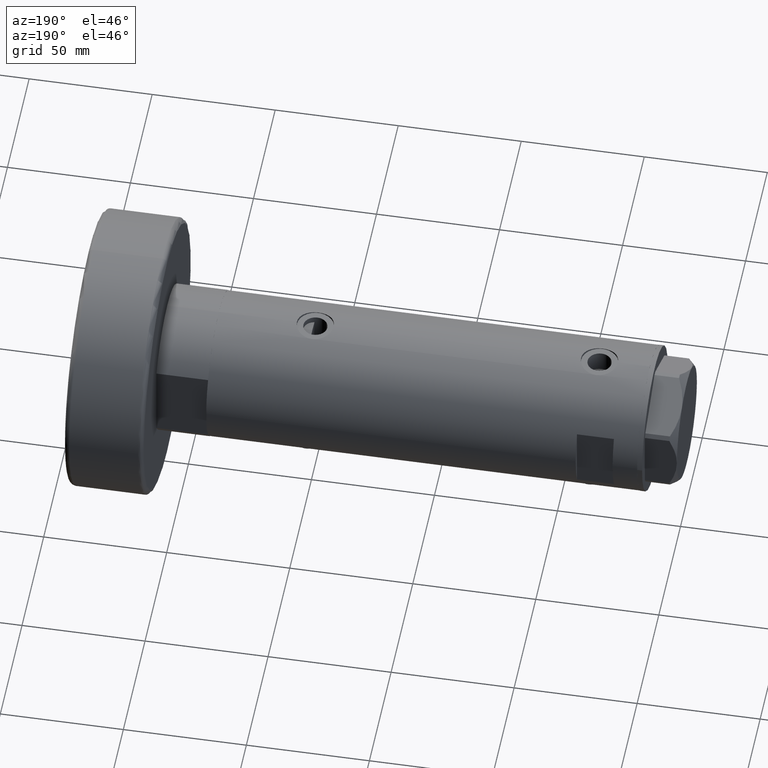
[diagram: clean part render]
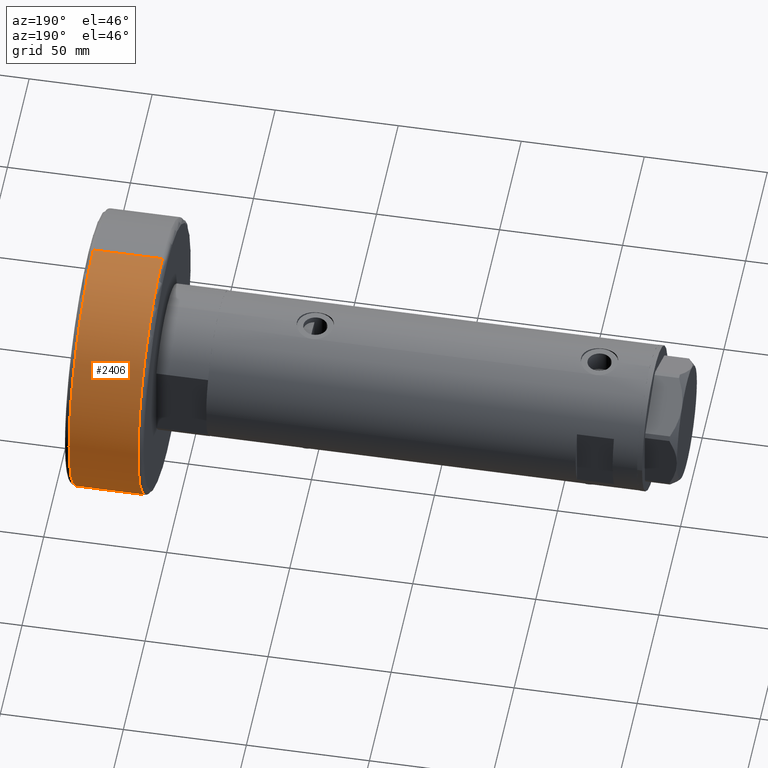
[diagram: same view with one face highlighted and labeled with its STEP entity id]
A machine part, auxiliary view. The second image highlights one B-rep face of the part: STEP entity #2406.
In plain terms, the highlighted cylindrical surface (partial cylindrical patch) has radius 56 mm, axis along (-1, -0, 0).
Its self-contained STEP definition (entity closure, byte-faithful):
#49 = AXIS2_PLACEMENT_3D ( 'NONE', #637, #3237, #2927 ) ;
#86 = DIRECTION ( 'NONE',  ( -0.000000000000000000, -0.000000000000000000, -1.000000000000000000 ) ) ;
#254 = DIRECTION ( 'NONE',  ( 1.000000000000000000, 0.000000000000000000, 0.000000000000000000 ) ) ;
#340 = VERTEX_POINT ( 'NONE', #3330 ) ;
#452 = DIRECTION ( 'NONE',  ( -1.000000000000000000, 0.000000000000000000, 0.000000000000000000 ) ) ;
#459 = CARTESIAN_POINT ( 'NONE',  ( 56.00000000000000000, 6.858022075225178552E-15, 32.00000000000000000 ) ) ;
#637 = CARTESIAN_POINT ( 'NONE',  ( 0.000000000000000000, 0.000000000000000000, 2.000000000000001776 ) ) ;
#931 = EDGE_CURVE ( 'NONE', #2477, #1570, #2086, .T. ) ;
#947 = CIRCLE ( 'NONE', #49, 56.00000000000000000 ) ;
#1095 = DIRECTION ( 'NONE',  ( -0.000000000000000000, -0.000000000000000000, -1.000000000000000000 ) ) ;
#1106 = ORIENTED_EDGE ( 'NONE', *, *, #931, .T. ) ;
#1570 = VERTEX_POINT ( 'NONE', #3321 ) ;
#1735 = EDGE_CURVE ( 'NONE', #1570, #4344, #2325, .T. ) ;
#2044 = EDGE_CURVE ( 'NONE', #4344, #340, #947, .T. ) ;
#2050 = DIRECTION ( 'NONE',  ( -0.000000000000000000, -0.000000000000000000, -1.000000000000000000 ) ) ;
#2086 = CIRCLE ( 'NONE', #4423, 56.00000000000000000 ) ;
#2168 = VECTOR ( 'NONE', #86, 1000.000000000000000 ) ;
#2318 = FACE_OUTER_BOUND ( 'NONE', #4388, .T. ) ;
#2325 = LINE ( 'NONE', #459, #2168 ) ;
#2406 = ADVANCED_FACE ( 'NONE', ( #2318 ), #2734, .T. ) ;
#2477 = VERTEX_POINT ( 'NONE', #3230 ) ;
#2507 = CARTESIAN_POINT ( 'NONE',  ( 0.000000000000000000, 0.000000000000000000, 30.00000000000000000 ) ) ;
#2552 = CARTESIAN_POINT ( 'NONE',  ( -56.00000000000000000, 0.000000000000000000, 32.00000000000000000 ) ) ;
#2580 = DIRECTION ( 'NONE',  ( -0.000000000000000000, -0.000000000000000000, -1.000000000000000000 ) ) ;
#2734 = CYLINDRICAL_SURFACE ( 'NONE', #3407, 56.00000000000000000 ) ;
#2927 = DIRECTION ( 'NONE',  ( 1.000000000000000000, 0.000000000000000000, 0.000000000000000000 ) ) ;
#3017 = LINE ( 'NONE', #2552, #3744 ) ;
#3230 = CARTESIAN_POINT ( 'NONE',  ( -56.00000000000000000, 0.000000000000000000, 30.00000000000000000 ) ) ;
#3237 = DIRECTION ( 'NONE',  ( 0.000000000000000000, 0.000000000000000000, 1.000000000000000000 ) ) ;
#3288 = ORIENTED_EDGE ( 'NONE', *, *, #4485, .F. ) ;
#3321 = CARTESIAN_POINT ( 'NONE',  ( 56.00000000000000000, 6.858022075225178552E-15, 30.00000000000000000 ) ) ;
#3330 = CARTESIAN_POINT ( 'NONE',  ( -56.00000000000000000, 0.000000000000000000, 2.000000000000001776 ) ) ;
#3407 = AXIS2_PLACEMENT_3D ( 'NONE', #3893, #2050, #452 ) ;
#3520 = ORIENTED_EDGE ( 'NONE', *, *, #2044, .T. ) ;
#3701 = ORIENTED_EDGE ( 'NONE', *, *, #1735, .T. ) ;
#3706 = CARTESIAN_POINT ( 'NONE',  ( 56.00000000000000000, 6.858022075225178552E-15, 2.000000000000001776 ) ) ;
#3744 = VECTOR ( 'NONE', #1095, 1000.000000000000000 ) ;
#3893 = CARTESIAN_POINT ( 'NONE',  ( 0.000000000000000000, 0.000000000000000000, 32.00000000000000000 ) ) ;
#4344 = VERTEX_POINT ( 'NONE', #3706 ) ;
#4388 = EDGE_LOOP ( 'NONE', ( #1106, #3701, #3520, #3288 ) ) ;
#4423 = AXIS2_PLACEMENT_3D ( 'NONE', #2507, #2580, #254 ) ;
#4485 = EDGE_CURVE ( 'NONE', #2477, #340, #3017, .T. ) ;